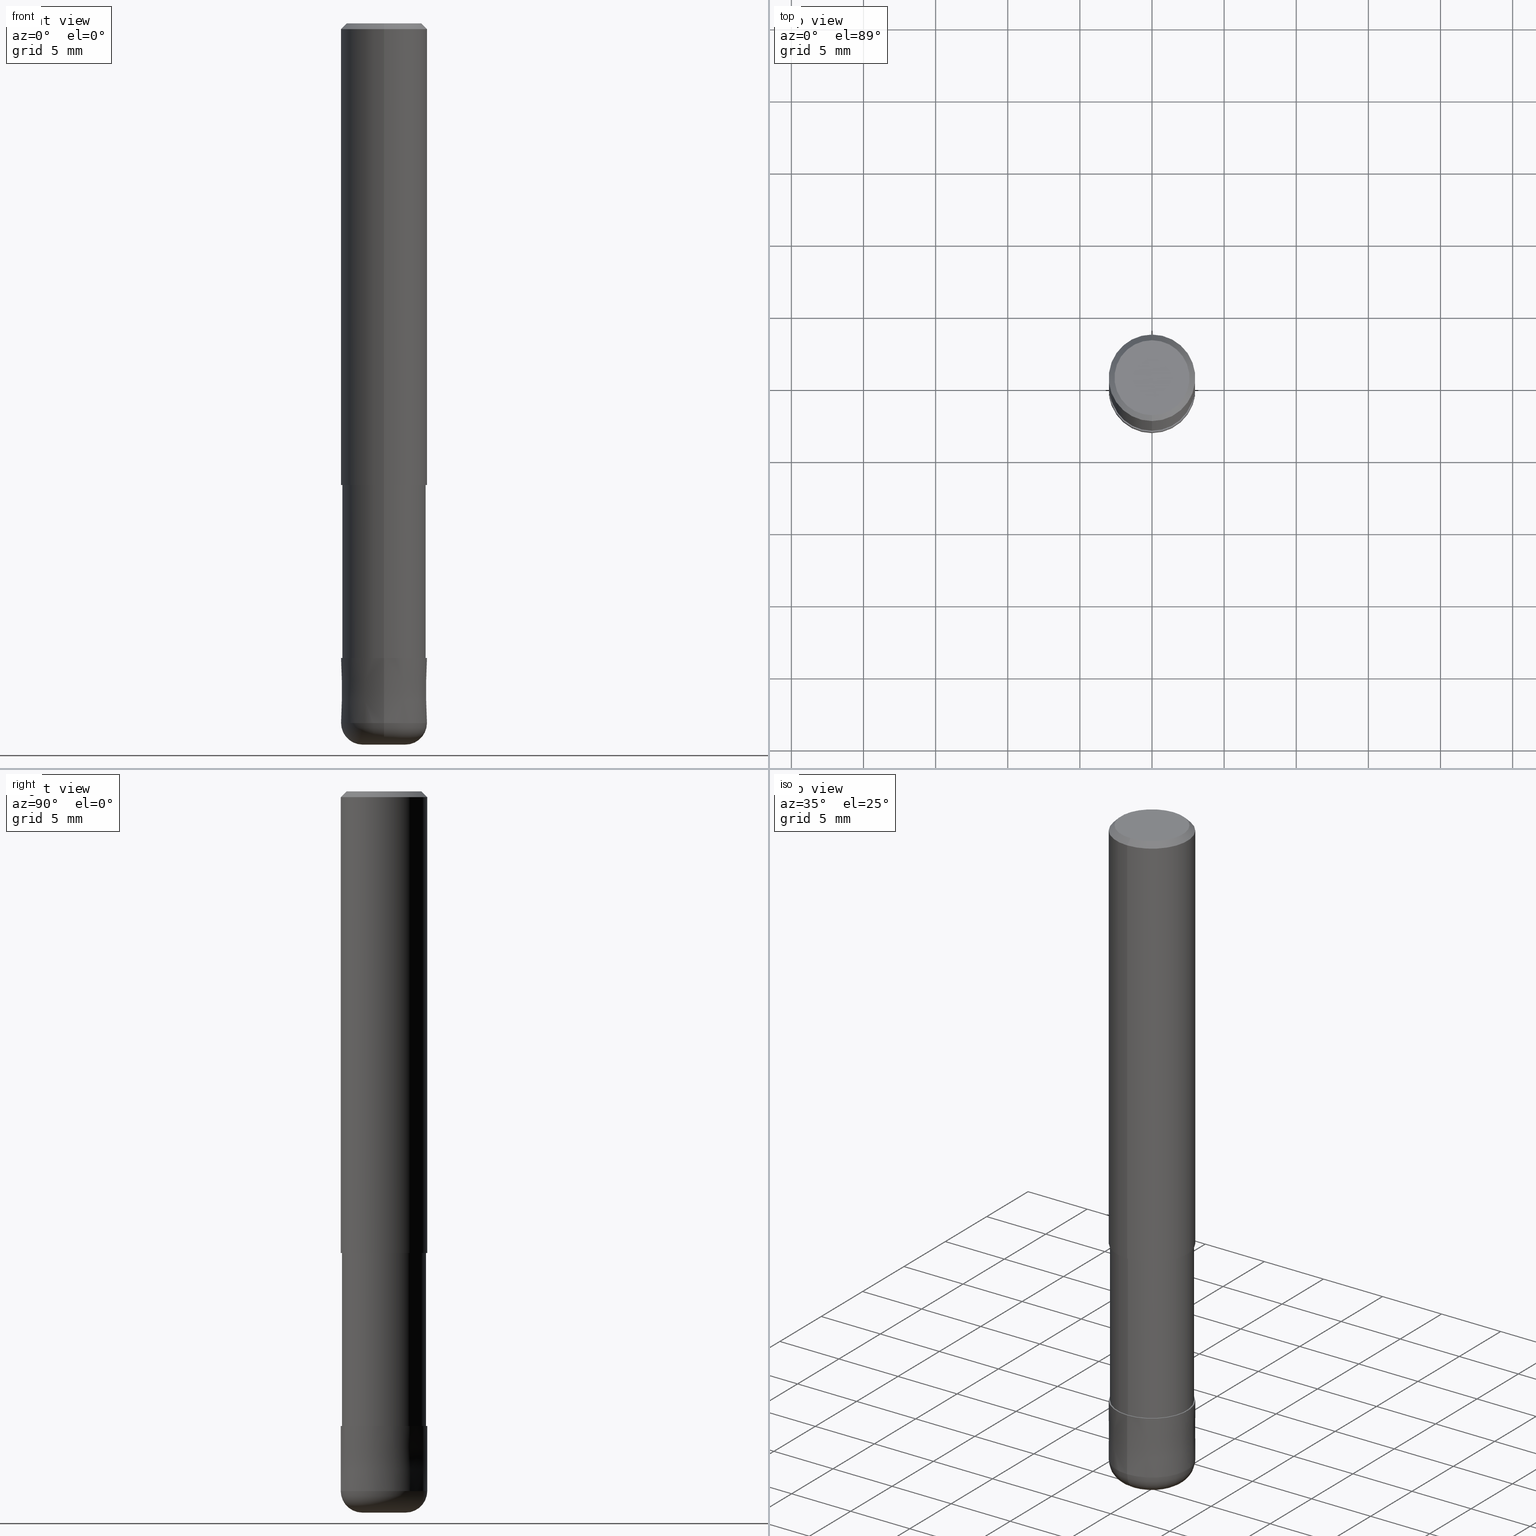
[diagram: canonical four-view strip — front | top / right | iso, engineering-drawing reading convention]
A machine part, canonical four-view strip (front | top / right | iso — engineering-drawing reading convention). The complete STEP part file that produces these views, byte-faithful:
ISO-10303-21;
HEADER;
FILE_DESCRIPTION(('no description'),'unknown implementation level');
FILE_NAME('HRRS4060-15-18S-Huellk.stp','  ',('CIMSOURCE GmbH'),('CADClick - KiM GmbH - www.kimweb.de'),'unknown preprocess','ACIS','unknown authorization');
FILE_SCHEMA(('automotive_design'));
ENDSEC;
DATA;
#1=MECHANICAL_DESIGN_GEOMETRIC_PRESENTATION_REPRESENTATION(' ',(#14,#15,#16,#17,#18,#19,#20,#21,#22,#23,#24,#25,#26,#27,#28,#29,#30,#31,#32,#33,#34,#35,#36,#37,#38,#39,#40,#41,#42,#43,#44,#45,#46,#47,#48,#49,#50,#51,#52,#53,#54,#55,#56,#57,#58,#59,#60,#61,#62,#63,#64,#65,#66,#67,#68,#69,#70,#71,#72),#10);
#2=PRODUCT_DEFINITION_CONTEXT('',#73,'design');
#3=APPLICATION_PROTOCOL_DEFINITION('INTERNATIONAL STANDARD','automotive_design',1994,#73);
#4=PRODUCT_CATEGORY_RELATIONSHIP('NONE','NONE',#74,#75);
#5=SHAPE_DEFINITION_REPRESENTATION(#76,#77);
#6=PRODUCT_DEFINITION_CONTEXT('',#78,'design');
#7=APPLICATION_PROTOCOL_DEFINITION('INTERNATIONAL STANDARD','automotive_design',1994,#78);
#8=PRODUCT_CATEGORY_RELATIONSHIP('NONE','NONE',#79,#80);
#9=SHAPE_DEFINITION_REPRESENTATION(#81,#82);
#10= (GEOMETRIC_REPRESENTATION_CONTEXT(3)GLOBAL_UNCERTAINTY_ASSIGNED_CONTEXT((#85))GLOBAL_UNIT_ASSIGNED_CONTEXT((#87,#88,#89))REPRESENTATION_CONTEXT('NONE','WORKSPACE'));
#14=STYLED_ITEM('',(#91),#92);
#15=STYLED_ITEM('',(#93),#94);
#16=STYLED_ITEM('',(#95),#96);
#17=STYLED_ITEM('',(#97),#98);
#18=STYLED_ITEM('',(#99),#100);
#19=STYLED_ITEM('',(#101),#102);
#20=STYLED_ITEM('',(#103),#104);
#21=STYLED_ITEM('',(#105),#106);
#22=STYLED_ITEM('',(#107),#108);
#23=STYLED_ITEM('',(#109),#110);
#24=STYLED_ITEM('',(#111),#112);
#25=STYLED_ITEM('',(#113),#114);
#26=STYLED_ITEM('',(#115),#116);
#27=STYLED_ITEM('',(#117),#118);
#28=STYLED_ITEM('',(#119),#120);
#29=STYLED_ITEM('',(#121),#122);
#30=STYLED_ITEM('',(#123),#124);
#31=STYLED_ITEM('',(#125),#126);
#32=STYLED_ITEM('',(#127),#128);
#33=STYLED_ITEM('',(#129),#130);
#34=STYLED_ITEM('',(#131),#132);
#35=STYLED_ITEM('',(#133),#134);
#36=STYLED_ITEM('',(#135),#136);
#37=STYLED_ITEM('',(#137),#138);
#38=STYLED_ITEM('',(#139),#140);
#39=STYLED_ITEM('',(#141),#142);
#40=STYLED_ITEM('',(#143),#144);
#41=STYLED_ITEM('',(#145),#146);
#42=STYLED_ITEM('',(#147),#148);
#43=STYLED_ITEM('',(#149),#150);
#44=STYLED_ITEM('',(#151),#152);
#45=STYLED_ITEM('',(#153),#154);
#46=STYLED_ITEM('',(#155),#156);
#47=STYLED_ITEM('',(#157),#158);
#48=STYLED_ITEM('',(#159),#160);
#49=STYLED_ITEM('',(#161),#162);
#50=STYLED_ITEM('',(#163),#164);
#51=STYLED_ITEM('',(#165),#166);
#52=STYLED_ITEM('',(#167),#168);
#53=STYLED_ITEM('',(#169),#170);
#54=STYLED_ITEM('',(#171),#172);
#55=STYLED_ITEM('',(#173),#174);
#56=STYLED_ITEM('',(#175),#176);
#57=STYLED_ITEM('',(#177),#178);
#58=STYLED_ITEM('',(#179),#180);
#59=STYLED_ITEM('',(#181),#182);
#60=STYLED_ITEM('',(#183),#184);
#61=STYLED_ITEM('',(#185),#186);
#62=STYLED_ITEM('',(#187),#188);
#63=STYLED_ITEM('',(#189),#190);
#64=STYLED_ITEM('',(#191),#192);
#65=STYLED_ITEM('',(#193),#194);
#66=STYLED_ITEM('',(#195),#196);
#67=STYLED_ITEM('',(#197),#198);
#68=STYLED_ITEM('',(#199),#200);
#69=STYLED_ITEM('',(#201),#202);
#70=STYLED_ITEM('',(#203),#204);
#71=STYLED_ITEM('',(#205),#206);
#72=STYLED_ITEM('',(#207),#208);
#73=APPLICATION_CONTEXT(' ');
#74=PRODUCT_CATEGORY('part','NONE');
#75=PRODUCT_RELATED_PRODUCT_CATEGORY('detail',' ',(#209));
#76=PRODUCT_DEFINITION_SHAPE('NONE','NONE',#210);
#77=ADVANCED_BREP_SHAPE_REPRESENTATION('1',(#106,#211),#10);
#78=APPLICATION_CONTEXT(' ');
#79=PRODUCT_CATEGORY('part','NONE');
#80=PRODUCT_RELATED_PRODUCT_CATEGORY('detail',' ',(#212));
#81=PRODUCT_DEFINITION_SHAPE('NONE','NONE',#213);
#82=ADVANCED_BREP_SHAPE_REPRESENTATION('2',(#132,#214),#10);
#85=UNCERTAINTY_MEASURE_WITH_UNIT(LENGTH_MEASURE(1.0E-006),#87,'','');
#87= (CONVERSION_BASED_UNIT('MILLIMETRE',#217)LENGTH_UNIT()NAMED_UNIT(#220));
#88= (NAMED_UNIT(#222)PLANE_ANGLE_UNIT()SI_UNIT($,.RADIAN.));
#89= (NAMED_UNIT(#222)SOLID_ANGLE_UNIT()SI_UNIT($,.STERADIAN.));
#91=PRESENTATION_STYLE_ASSIGNMENT((#228));
#92=ADVANCED_FACE('',(#229),#230,.T.);
#93=PRESENTATION_STYLE_ASSIGNMENT((#231));
#94=VERTEX_POINT('',#232);
#95=PRESENTATION_STYLE_ASSIGNMENT((#233));
#96=EDGE_CURVE('',#144,#134,#234,.T.);
#97=PRESENTATION_STYLE_ASSIGNMENT((#235));
#98=EDGE_CURVE('',#128,#188,#236,.T.);
#99=PRESENTATION_STYLE_ASSIGNMENT((#237));
#100=EDGE_CURVE('',#142,#94,#238,.T.);
#101=PRESENTATION_STYLE_ASSIGNMENT((#239));
#102=EDGE_CURVE('',#124,#206,#240,.T.);
#103=PRESENTATION_STYLE_ASSIGNMENT((#241));
#104=ADVANCED_FACE('',(#242),#243,.T.);
#105=PRESENTATION_STYLE_ASSIGNMENT((#244));
#106=MANIFOLD_SOLID_BREP('1',#245);
#107=PRESENTATION_STYLE_ASSIGNMENT((#246));
#108=EDGE_CURVE('',#128,#184,#247,.T.);
#109=PRESENTATION_STYLE_ASSIGNMENT((#248));
#110=EDGE_CURVE('',#142,#136,#249,.T.);
#111=PRESENTATION_STYLE_ASSIGNMENT((#250));
#112=EDGE_CURVE('',#156,#206,#251,.T.);
#113=PRESENTATION_STYLE_ASSIGNMENT((#252));
#114=ADVANCED_FACE('',(#253),#254,.T.);
#115=PRESENTATION_STYLE_ASSIGNMENT((#255));
#116=ADVANCED_FACE('',(#256),#257,.T.);
#117=PRESENTATION_STYLE_ASSIGNMENT((#258));
#118=ADVANCED_FACE('',(#259),#260,.T.);
#119=PRESENTATION_STYLE_ASSIGNMENT((#261));
#120=ADVANCED_FACE('',(#262),#263,.T.);
#121=PRESENTATION_STYLE_ASSIGNMENT((#264));
#122=ADVANCED_FACE('',(#265),#266,.T.);
#123=PRESENTATION_STYLE_ASSIGNMENT((#267));
#124=VERTEX_POINT('',#268);
#125=PRESENTATION_STYLE_ASSIGNMENT((#269));
#126=VERTEX_POINT('',#270);
#127=PRESENTATION_STYLE_ASSIGNMENT((#271));
#128=VERTEX_POINT('',#272);
#129=PRESENTATION_STYLE_ASSIGNMENT((#273));
#130=VERTEX_POINT('',#274);
#131=PRESENTATION_STYLE_ASSIGNMENT((#275));
#132=MANIFOLD_SOLID_BREP('2',#276);
#133=PRESENTATION_STYLE_ASSIGNMENT((#277));
#134=VERTEX_POINT('',#278);
#135=PRESENTATION_STYLE_ASSIGNMENT((#279));
#136=VERTEX_POINT('',#280);
#137=PRESENTATION_STYLE_ASSIGNMENT((#281));
#138=VERTEX_POINT('',#282);
#139=PRESENTATION_STYLE_ASSIGNMENT((#283));
#140=EDGE_CURVE('',#136,#142,#284,.T.);
#141=PRESENTATION_STYLE_ASSIGNMENT((#285));
#142=VERTEX_POINT('',#286);
#143=PRESENTATION_STYLE_ASSIGNMENT((#287));
#144=VERTEX_POINT('',#288);
#145=PRESENTATION_STYLE_ASSIGNMENT((#289));
#146=EDGE_CURVE('',#164,#130,#290,.T.);
#147=PRESENTATION_STYLE_ASSIGNMENT((#291));
#148=EDGE_CURVE('',#94,#176,#292,.T.);
#149=PRESENTATION_STYLE_ASSIGNMENT((#293));
#150=EDGE_CURVE('',#136,#134,#294,.T.);
#151=PRESENTATION_STYLE_ASSIGNMENT((#295));
#152=EDGE_CURVE('',#176,#94,#296,.T.);
#153=PRESENTATION_STYLE_ASSIGNMENT((#297));
#154=EDGE_CURVE('',#184,#128,#298,.T.);
#155=PRESENTATION_STYLE_ASSIGNMENT((#299));
#156=VERTEX_POINT('',#300);
#157=PRESENTATION_STYLE_ASSIGNMENT((#301));
#158=ADVANCED_FACE('',(#302),#303,.T.);
#159=PRESENTATION_STYLE_ASSIGNMENT((#304));
#160=EDGE_CURVE('',#138,#156,#305,.T.);
#161=PRESENTATION_STYLE_ASSIGNMENT((#306));
#162=ADVANCED_FACE('',(#307),#308,.T.);
#163=PRESENTATION_STYLE_ASSIGNMENT((#309));
#164=VERTEX_POINT('',#310);
#165=PRESENTATION_STYLE_ASSIGNMENT((#311));
#166=EDGE_CURVE('',#126,#188,#312,.T.);
#167=PRESENTATION_STYLE_ASSIGNMENT((#313));
#168=EDGE_CURVE('',#206,#124,#314,.T.);
#169=PRESENTATION_STYLE_ASSIGNMENT((#315));
#170=EDGE_CURVE('',#156,#138,#316,.T.);
#171=PRESENTATION_STYLE_ASSIGNMENT((#317));
#172=ADVANCED_FACE('',(#318,#319),#320,.T.);
#173=PRESENTATION_STYLE_ASSIGNMENT((#321));
#174=EDGE_CURVE('',#188,#126,#322,.T.);
#175=PRESENTATION_STYLE_ASSIGNMENT((#323));
#176=VERTEX_POINT('',#324);
#177=PRESENTATION_STYLE_ASSIGNMENT((#325));
#178=EDGE_CURVE('',#130,#164,#326,.T.);
#179=PRESENTATION_STYLE_ASSIGNMENT((#327));
#180=EDGE_CURVE('',#176,#136,#328,.T.);
#181=PRESENTATION_STYLE_ASSIGNMENT((#329));
#182=ADVANCED_FACE('',(#330),#331,.T.);
#183=PRESENTATION_STYLE_ASSIGNMENT((#332));
#184=VERTEX_POINT('',#333);
#185=PRESENTATION_STYLE_ASSIGNMENT((#334));
#186=ADVANCED_FACE('',(#335),#336,.T.);
#187=PRESENTATION_STYLE_ASSIGNMENT((#337));
#188=VERTEX_POINT('',#338);
#189=PRESENTATION_STYLE_ASSIGNMENT((#339));
#190=ADVANCED_FACE('',(#340),#341,.T.);
#191=PRESENTATION_STYLE_ASSIGNMENT((#342));
#192=ADVANCED_FACE('',(#343),#344,.T.);
#193=PRESENTATION_STYLE_ASSIGNMENT((#345));
#194=ADVANCED_FACE('',(#346),#347,.T.);
#195=PRESENTATION_STYLE_ASSIGNMENT((#348));
#196=EDGE_CURVE('',#144,#142,#349,.T.);
#197=PRESENTATION_STYLE_ASSIGNMENT((#350));
#198=EDGE_CURVE('',#124,#138,#351,.T.);
#199=PRESENTATION_STYLE_ASSIGNMENT((#352));
#200=EDGE_CURVE('',#134,#144,#353,.T.);
#201=PRESENTATION_STYLE_ASSIGNMENT((#354));
#202=EDGE_CURVE('',#124,#130,#355,.T.);
#203=PRESENTATION_STYLE_ASSIGNMENT((#356));
#204=EDGE_CURVE('',#164,#206,#357,.T.);
#205=PRESENTATION_STYLE_ASSIGNMENT((#358));
#206=VERTEX_POINT('',#359);
#207=PRESENTATION_STYLE_ASSIGNMENT((#360));
#208=EDGE_CURVE('',#126,#184,#361,.T.);
#209=PRODUCT('1','1','PART-1-DESC',(#362));
#210=PRODUCT_DEFINITION('NONE','NONE',#363,#2);
#211=AXIS2_PLACEMENT_3D('',#364,#365,#366);
#212=PRODUCT('2','2','PART-2-DESC',(#367));
#213=PRODUCT_DEFINITION('NONE','NONE',#368,#6);
#214=AXIS2_PLACEMENT_3D('',#369,#370,#371);
#217=LENGTH_MEASURE_WITH_UNIT(LENGTH_MEASURE(1.0),#372);
#220=DIMENSIONAL_EXPONENTS(1.0,0.0,0.0,0.0,0.0,0.0,0.0);
#222=DIMENSIONAL_EXPONENTS(0.0,0.0,0.0,0.0,0.0,0.0,0.0);
#228=SURFACE_STYLE_USAGE(.BOTH.,#373);
#229=FACE_OUTER_BOUND('',#374,.T.);
#230=CONICAL_SURFACE('',#375,2.99995,2.22222222186111E-005);
#231=POINT_STYLE(' ',#376,POSITIVE_LENGTH_MEASURE(1.0E-006),#377);
#232=CARTESIAN_POINT('',(3.18397651993818E-016,-2.6,0.0));
#233=CURVE_STYLE('',#378,POSITIVE_LENGTH_MEASURE(1.0E-006),#379);
#234=CIRCLE('',#380,3.0);
#235=CURVE_STYLE('',#381,POSITIVE_LENGTH_MEASURE(1.0E-006),#382);
#236=LINE('',#383,#384);
#237=CURVE_STYLE('',#385,POSITIVE_LENGTH_MEASURE(1.0E-006),#386);
#238=LINE('',#387,#388);
#239=CURVE_STYLE('',#389,POSITIVE_LENGTH_MEASURE(1.0E-006),#390);
#240=CIRCLE('',#391,3.0);
#241=SURFACE_STYLE_USAGE(.BOTH.,#392);
#242=FACE_OUTER_BOUND('',#393,.T.);
#243=CONICAL_SURFACE('',#394,2.8,0.78539816339745);
#244=SURFACE_STYLE_USAGE(.BOTH.,#395);
#245=CLOSED_SHELL('',(#192,#194,#104,#172,#120,#158,#116,#122,#190));
#246=CURVE_STYLE('',#396,POSITIVE_LENGTH_MEASURE(1.0E-006),#397);
#247=CIRCLE('',#398,2.90995);
#248=CURVE_STYLE('',#399,POSITIVE_LENGTH_MEASURE(1.0E-006),#400);
#249=CIRCLE('',#401,3.0);
#250=CURVE_STYLE('',#402,POSITIVE_LENGTH_MEASURE(1.0E-006),#403);
#251=LINE('',#404,#405);
#252=SURFACE_STYLE_USAGE(.BOTH.,#406);
#253=FACE_OUTER_BOUND('',#407,.T.);
#254=CONICAL_SURFACE('',#408,2.99995,2.22222222186111E-005);
#255=SURFACE_STYLE_USAGE(.BOTH.,#409);
#256=FACE_OUTER_BOUND('',#410,.T.);
#257=CYLINDRICAL_SURFACE('',#411,3.0);
#258=SURFACE_STYLE_USAGE(.BOTH.,#412);
#259=FACE_OUTER_BOUND('',#413,.T.);
#260=PLANE('',#414);
#261=SURFACE_STYLE_USAGE(.BOTH.,#415);
#262=FACE_OUTER_BOUND('',#416,.T.);
#263=PLANE('',#417);
#264=SURFACE_STYLE_USAGE(.BOTH.,#418);
#265=FACE_OUTER_BOUND('',#419,.T.);
#266=CYLINDRICAL_SURFACE('',#420,2.90995);
#267=POINT_STYLE(' ',#421,POSITIVE_LENGTH_MEASURE(1.0E-006),#422);
#268=CARTESIAN_POINT('',(3.67381906146713E-016,-3.0,-48.5));
#269=POINT_STYLE(' ',#423,POSITIVE_LENGTH_MEASURE(1.0E-006),#424);
#270=CARTESIAN_POINT('',(3.56354325930543E-016,-2.90995,-44.0));
#271=POINT_STYLE(' ',#425,POSITIVE_LENGTH_MEASURE(1.0E-006),#426);
#272=CARTESIAN_POINT('',(0.0,2.90995,-32.0));
#273=POINT_STYLE(' ',#427,POSITIVE_LENGTH_MEASURE(1.0E-006),#428);
#274=CARTESIAN_POINT('',(1.83690953073357E-016,-1.5,-50.0));
#275=SURFACE_STYLE_USAGE(.BOTH.,#429);
#276=CLOSED_SHELL('',(#162,#114,#118,#92,#182,#186));
#277=POINT_STYLE(' ',#430,POSITIVE_LENGTH_MEASURE(1.0E-006),#431);
#278=CARTESIAN_POINT('',(0.0,3.0,-32.0));
#279=POINT_STYLE(' ',#432,POSITIVE_LENGTH_MEASURE(1.0E-006),#433);
#280=CARTESIAN_POINT('',(0.0,3.0,-0.399999999999999));
#281=POINT_STYLE(' ',#434,POSITIVE_LENGTH_MEASURE(1.0E-006),#435);
#282=CARTESIAN_POINT('',(3.67369660083175E-016,-2.9999,-44.0));
#283=CURVE_STYLE('',#436,POSITIVE_LENGTH_MEASURE(1.0E-006),#437);
#284=CIRCLE('',#438,3.0);
#285=POINT_STYLE(' ',#439,POSITIVE_LENGTH_MEASURE(1.0E-006),#440);
#286=CARTESIAN_POINT('',(3.67381906146713E-016,-3.0,-0.399999999999999));
#287=POINT_STYLE(' ',#441,POSITIVE_LENGTH_MEASURE(1.0E-006),#442);
#288=CARTESIAN_POINT('',(3.67381906146713E-016,-3.0,-32.0));
#289=CURVE_STYLE('',#443,POSITIVE_LENGTH_MEASURE(1.0E-006),#444);
#290=CIRCLE('',#445,1.5);
#291=CURVE_STYLE('',#446,POSITIVE_LENGTH_MEASURE(1.0E-006),#447);
#292=CIRCLE('',#448,2.6);
#293=CURVE_STYLE('',#449,POSITIVE_LENGTH_MEASURE(1.0E-006),#450);
#294=LINE('',#451,#452);
#295=CURVE_STYLE('',#453,POSITIVE_LENGTH_MEASURE(1.0E-006),#454);
#296=CIRCLE('',#455,2.6);
#297=CURVE_STYLE('',#456,POSITIVE_LENGTH_MEASURE(1.0E-006),#457);
#298=CIRCLE('',#458,2.90995);
#299=POINT_STYLE(' ',#459,POSITIVE_LENGTH_MEASURE(1.0E-006),#460);
#300=CARTESIAN_POINT('',(0.0,2.9999,-44.0));
#301=SURFACE_STYLE_USAGE(.BOTH.,#461);
#302=FACE_OUTER_BOUND('',#462,.T.);
#303=CONICAL_SURFACE('',#463,2.8,0.78539816339745);
#304=CURVE_STYLE('',#464,POSITIVE_LENGTH_MEASURE(1.0E-006),#465);
#305=CIRCLE('',#466,2.9999);
#306=SURFACE_STYLE_USAGE(.BOTH.,#467);
#307=FACE_OUTER_BOUND('',#468,.T.);
#308=TOROIDAL_SURFACE('',#469,1.5,1.5);
#309=POINT_STYLE(' ',#470,POSITIVE_LENGTH_MEASURE(1.0E-006),#471);
#310=CARTESIAN_POINT('',(0.0,1.5,-50.0));
#311=CURVE_STYLE('',#472,POSITIVE_LENGTH_MEASURE(1.0E-006),#473);
#312=CIRCLE('',#474,2.90995);
#313=CURVE_STYLE('',#475,POSITIVE_LENGTH_MEASURE(1.0E-006),#476);
#314=CIRCLE('',#477,3.0);
#315=CURVE_STYLE('',#478,POSITIVE_LENGTH_MEASURE(1.0E-006),#479);
#316=CIRCLE('',#480,2.9999);
#317=SURFACE_STYLE_USAGE(.BOTH.,#481);
#318=FACE_OUTER_BOUND('',#482,.T.);
#319=FACE_BOUND('',#483,.T.);
#320=PLANE('',#484);
#321=CURVE_STYLE('',#485,POSITIVE_LENGTH_MEASURE(1.0E-006),#486);
#322=CIRCLE('',#487,2.90995);
#323=POINT_STYLE(' ',#488,POSITIVE_LENGTH_MEASURE(1.0E-006),#489);
#324=CARTESIAN_POINT('',(0.0,2.6,0.0));
#325=CURVE_STYLE('',#490,POSITIVE_LENGTH_MEASURE(1.0E-006),#491);
#326=CIRCLE('',#492,1.5);
#327=CURVE_STYLE('',#493,POSITIVE_LENGTH_MEASURE(1.0E-006),#494);
#328=LINE('',#495,#496);
#329=SURFACE_STYLE_USAGE(.BOTH.,#497);
#330=FACE_OUTER_BOUND('',#498,.T.);
#331=TOROIDAL_SURFACE('',#499,1.5,1.5);
#332=POINT_STYLE(' ',#500,POSITIVE_LENGTH_MEASURE(1.0E-006),#501);
#333=CARTESIAN_POINT('',(3.56354325930543E-016,-2.90995,-32.0));
#334=SURFACE_STYLE_USAGE(.BOTH.,#502);
#335=FACE_OUTER_BOUND('',#503,.T.);
#336=PLANE('',#504);
#337=POINT_STYLE(' ',#505,POSITIVE_LENGTH_MEASURE(1.0E-006),#506);
#338=CARTESIAN_POINT('',(0.0,2.90995,-44.0));
#339=SURFACE_STYLE_USAGE(.BOTH.,#507);
#340=FACE_OUTER_BOUND('',#508,.T.);
#341=PLANE('',#509);
#342=SURFACE_STYLE_USAGE(.BOTH.,#510);
#343=FACE_OUTER_BOUND('',#511,.T.);
#344=CYLINDRICAL_SURFACE('',#512,2.90995);
#345=SURFACE_STYLE_USAGE(.BOTH.,#513);
#346=FACE_OUTER_BOUND('',#514,.T.);
#347=CYLINDRICAL_SURFACE('',#515,3.0);
#348=CURVE_STYLE('',#516,POSITIVE_LENGTH_MEASURE(1.0E-006),#517);
#349=LINE('',#518,#519);
#350=CURVE_STYLE('',#520,POSITIVE_LENGTH_MEASURE(1.0E-006),#521);
#351=LINE('',#522,#523);
#352=CURVE_STYLE('',#524,POSITIVE_LENGTH_MEASURE(1.0E-006),#525);
#353=CIRCLE('',#526,3.0);
#354=CURVE_STYLE('',#527,POSITIVE_LENGTH_MEASURE(1.0E-006),#528);
#355=CIRCLE('',#529,1.5);
#356=CURVE_STYLE('',#530,POSITIVE_LENGTH_MEASURE(1.0E-006),#531);
#357=CIRCLE('',#532,1.5);
#358=POINT_STYLE(' ',#533,POSITIVE_LENGTH_MEASURE(1.0E-006),#534);
#359=CARTESIAN_POINT('',(0.0,3.0,-48.5));
#360=CURVE_STYLE('',#535,POSITIVE_LENGTH_MEASURE(1.0E-006),#536);
#361=LINE('',#537,#538);
#362=PRODUCT_CONTEXT('',#73,'mechanical');
#363=PRODUCT_DEFINITION_FORMATION_WITH_SPECIFIED_SOURCE(' ','NONE',#209,.NOT_KNOWN.);
#364=CARTESIAN_POINT('',(0.0,0.0,0.0));
#365=DIRECTION('',(0.0,0.0,1.0));
#366=DIRECTION('',(1.0,0.0,0.0));
#367=PRODUCT_CONTEXT('',#78,'mechanical');
#368=PRODUCT_DEFINITION_FORMATION_WITH_SPECIFIED_SOURCE(' ','NONE',#212,.NOT_KNOWN.);
#369=CARTESIAN_POINT('',(0.0,0.0,0.0));
#370=DIRECTION('',(0.0,0.0,1.0));
#371=DIRECTION('',(1.0,0.0,0.0));
#372= (NAMED_UNIT(#220)LENGTH_UNIT()SI_UNIT(.MILLI.,.METRE.));
#373=SURFACE_SIDE_STYLE('',(#540));
#374=EDGE_LOOP('',(#541,#542,#543,#544));
#375=AXIS2_PLACEMENT_3D('',#545,#546,#547);
#376=PRE_DEFINED_MARKER('');
#377=COLOUR_RGB('',0.498039215803146,0.498039215803146,0.498039215803146);
#378=DRAUGHTING_PRE_DEFINED_CURVE_FONT('continuous');
#379=COLOUR_RGB('',0.498039215803146,0.498039215803146,0.498039215803146);
#380=AXIS2_PLACEMENT_3D('',#548,#549,#550);
#381=DRAUGHTING_PRE_DEFINED_CURVE_FONT('continuous');
#382=COLOUR_RGB('',0.498039215803146,0.498039215803146,0.498039215803146);
#383=CARTESIAN_POINT('',(-3.56354325930543E-016,2.90995,-38.0));
#384=VECTOR('',#551,1.0);
#385=DRAUGHTING_PRE_DEFINED_CURVE_FONT('continuous');
#386=COLOUR_RGB('',0.498039215803146,0.498039215803146,0.498039215803146);
#387=CARTESIAN_POINT('',(3.42889779070266E-016,-2.8,-0.199999999999999));
#388=VECTOR('',#552,1.0);
#389=DRAUGHTING_PRE_DEFINED_CURVE_FONT('continuous');
#390=COLOUR_RGB('',0.800000011920929,0.800000011920929,0.800000011920929);
#391=AXIS2_PLACEMENT_3D('',#553,#554,#555);
#392=SURFACE_SIDE_STYLE('',(#556));
#393=EDGE_LOOP('',(#557,#558,#559,#560));
#394=AXIS2_PLACEMENT_3D('',#561,#562,#563);
#395=SURFACE_SIDE_STYLE('',(#564));
#396=DRAUGHTING_PRE_DEFINED_CURVE_FONT('continuous');
#397=COLOUR_RGB('',0.498039215803146,0.498039215803146,0.498039215803146);
#398=AXIS2_PLACEMENT_3D('',#565,#566,#567);
#399=DRAUGHTING_PRE_DEFINED_CURVE_FONT('continuous');
#400=COLOUR_RGB('',0.498039215803146,0.498039215803146,0.498039215803146);
#401=AXIS2_PLACEMENT_3D('',#568,#569,#570);
#402=DRAUGHTING_PRE_DEFINED_CURVE_FONT('continuous');
#403=COLOUR_RGB('',0.800000011920929,0.800000011920929,0.800000011920929);
#404=CARTESIAN_POINT('',(-3.67375783114944E-016,2.99995,-46.25));
#405=VECTOR('',#571,1.0);
#406=SURFACE_SIDE_STYLE('',(#572));
#407=EDGE_LOOP('',(#573,#574,#575,#576));
#408=AXIS2_PLACEMENT_3D('',#577,#578,#579);
#409=SURFACE_SIDE_STYLE('',(#580));
#410=EDGE_LOOP('',(#581,#582,#583,#584));
#411=AXIS2_PLACEMENT_3D('',#585,#586,#587);
#412=SURFACE_SIDE_STYLE('',(#588));
#413=EDGE_LOOP('',(#589,#590));
#414=AXIS2_PLACEMENT_3D('',#591,#592,#593);
#415=SURFACE_SIDE_STYLE('',(#594));
#416=EDGE_LOOP('',(#595,#596));
#417=AXIS2_PLACEMENT_3D('',#597,#598,#599);
#418=SURFACE_SIDE_STYLE('',(#600));
#419=EDGE_LOOP('',(#601,#602,#603,#604));
#420=AXIS2_PLACEMENT_3D('',#605,#606,#607);
#421=PRE_DEFINED_MARKER('');
#422=COLOUR_RGB('',0.800000011920929,0.800000011920929,0.800000011920929);
#423=PRE_DEFINED_MARKER('');
#424=COLOUR_RGB('',0.498039215803146,0.498039215803146,0.498039215803146);
#425=PRE_DEFINED_MARKER('');
#426=COLOUR_RGB('',0.498039215803146,0.498039215803146,0.498039215803146);
#427=PRE_DEFINED_MARKER('');
#428=COLOUR_RGB('',0.800000011920929,0.800000011920929,0.800000011920929);
#429=SURFACE_SIDE_STYLE('',(#608));
#430=PRE_DEFINED_MARKER('');
#431=COLOUR_RGB('',0.498039215803146,0.498039215803146,0.498039215803146);
#432=PRE_DEFINED_MARKER('');
#433=COLOUR_RGB('',0.498039215803146,0.498039215803146,0.498039215803146);
#434=PRE_DEFINED_MARKER('');
#435=COLOUR_RGB('',0.800000011920929,0.800000011920929,0.800000011920929);
#436=DRAUGHTING_PRE_DEFINED_CURVE_FONT('continuous');
#437=COLOUR_RGB('',0.498039215803146,0.498039215803146,0.498039215803146);
#438=AXIS2_PLACEMENT_3D('',#609,#610,#611);
#439=PRE_DEFINED_MARKER('');
#440=COLOUR_RGB('',0.498039215803146,0.498039215803146,0.498039215803146);
#441=PRE_DEFINED_MARKER('');
#442=COLOUR_RGB('',0.498039215803146,0.498039215803146,0.498039215803146);
#443=DRAUGHTING_PRE_DEFINED_CURVE_FONT('continuous');
#444=COLOUR_RGB('',0.800000011920929,0.800000011920929,0.800000011920929);
#445=AXIS2_PLACEMENT_3D('',#612,#613,#614);
#446=DRAUGHTING_PRE_DEFINED_CURVE_FONT('continuous');
#447=COLOUR_RGB('',0.498039215803146,0.498039215803146,0.498039215803146);
#448=AXIS2_PLACEMENT_3D('',#615,#616,#617);
#449=DRAUGHTING_PRE_DEFINED_CURVE_FONT('continuous');
#450=COLOUR_RGB('',0.498039215803146,0.498039215803146,0.498039215803146);
#451=CARTESIAN_POINT('',(-3.67381906146713E-016,3.0,-16.2));
#452=VECTOR('',#618,1.0);
#453=DRAUGHTING_PRE_DEFINED_CURVE_FONT('continuous');
#454=COLOUR_RGB('',0.498039215803146,0.498039215803146,0.498039215803146);
#455=AXIS2_PLACEMENT_3D('',#619,#620,#621);
#456=DRAUGHTING_PRE_DEFINED_CURVE_FONT('continuous');
#457=COLOUR_RGB('',0.498039215803146,0.498039215803146,0.498039215803146);
#458=AXIS2_PLACEMENT_3D('',#622,#623,#624);
#459=PRE_DEFINED_MARKER('');
#460=COLOUR_RGB('',0.800000011920929,0.800000011920929,0.800000011920929);
#461=SURFACE_SIDE_STYLE('',(#625));
#462=EDGE_LOOP('',(#626,#627,#628,#629));
#463=AXIS2_PLACEMENT_3D('',#630,#631,#632);
#464=DRAUGHTING_PRE_DEFINED_CURVE_FONT('continuous');
#465=COLOUR_RGB('',0.800000011920929,0.800000011920929,0.800000011920929);
#466=AXIS2_PLACEMENT_3D('',#633,#634,#635);
#467=SURFACE_SIDE_STYLE('',(#636));
#468=EDGE_LOOP('',(#637,#638,#639,#640));
#469=AXIS2_PLACEMENT_3D('',#641,#642,#643);
#470=PRE_DEFINED_MARKER('');
#471=COLOUR_RGB('',0.800000011920929,0.800000011920929,0.800000011920929);
#472=DRAUGHTING_PRE_DEFINED_CURVE_FONT('continuous');
#473=COLOUR_RGB('',0.498039215803146,0.498039215803146,0.498039215803146);
#474=AXIS2_PLACEMENT_3D('',#644,#645,#646);
#475=DRAUGHTING_PRE_DEFINED_CURVE_FONT('continuous');
#476=COLOUR_RGB('',0.800000011920929,0.800000011920929,0.800000011920929);
#477=AXIS2_PLACEMENT_3D('',#647,#648,#649);
#478=DRAUGHTING_PRE_DEFINED_CURVE_FONT('continuous');
#479=COLOUR_RGB('',0.800000011920929,0.800000011920929,0.800000011920929);
#480=AXIS2_PLACEMENT_3D('',#650,#651,#652);
#481=SURFACE_SIDE_STYLE('',(#653));
#482=EDGE_LOOP('',(#654,#655));
#483=EDGE_LOOP('',(#656,#657));
#484=AXIS2_PLACEMENT_3D('',#658,#659,#660);
#485=DRAUGHTING_PRE_DEFINED_CURVE_FONT('continuous');
#486=COLOUR_RGB('',0.498039215803146,0.498039215803146,0.498039215803146);
#487=AXIS2_PLACEMENT_3D('',#661,#662,#663);
#488=PRE_DEFINED_MARKER('');
#489=COLOUR_RGB('',0.498039215803146,0.498039215803146,0.498039215803146);
#490=DRAUGHTING_PRE_DEFINED_CURVE_FONT('continuous');
#491=COLOUR_RGB('',0.800000011920929,0.800000011920929,0.800000011920929);
#492=AXIS2_PLACEMENT_3D('',#664,#665,#666);
#493=DRAUGHTING_PRE_DEFINED_CURVE_FONT('continuous');
#494=COLOUR_RGB('',0.498039215803146,0.498039215803146,0.498039215803146);
#495=CARTESIAN_POINT('',(-3.42889779070266E-016,2.8,-0.199999999999999));
#496=VECTOR('',#667,1.0);
#497=SURFACE_SIDE_STYLE('',(#668));
#498=EDGE_LOOP('',(#669,#670,#671,#672));
#499=AXIS2_PLACEMENT_3D('',#673,#674,#675);
#500=PRE_DEFINED_MARKER('');
#501=COLOUR_RGB('',0.498039215803146,0.498039215803146,0.498039215803146);
#502=SURFACE_SIDE_STYLE('',(#676));
#503=EDGE_LOOP('',(#677,#678));
#504=AXIS2_PLACEMENT_3D('',#679,#680,#681);
#505=PRE_DEFINED_MARKER('');
#506=COLOUR_RGB('',0.498039215803146,0.498039215803146,0.498039215803146);
#507=SURFACE_SIDE_STYLE('',(#682));
#508=EDGE_LOOP('',(#683,#684));
#509=AXIS2_PLACEMENT_3D('',#685,#686,#687);
#510=SURFACE_SIDE_STYLE('',(#688));
#511=EDGE_LOOP('',(#689,#690,#691,#692));
#512=AXIS2_PLACEMENT_3D('',#693,#694,#695);
#513=SURFACE_SIDE_STYLE('',(#696));
#514=EDGE_LOOP('',(#697,#698,#699,#700));
#515=AXIS2_PLACEMENT_3D('',#701,#702,#703);
#516=DRAUGHTING_PRE_DEFINED_CURVE_FONT('continuous');
#517=COLOUR_RGB('',0.498039215803146,0.498039215803146,0.498039215803146);
#518=CARTESIAN_POINT('',(3.67381906146713E-016,-3.0,-16.2));
#519=VECTOR('',#704,1.0);
#520=DRAUGHTING_PRE_DEFINED_CURVE_FONT('continuous');
#521=COLOUR_RGB('',0.800000011920929,0.800000011920929,0.800000011920929);
#522=CARTESIAN_POINT('',(3.67375783114944E-016,-2.99995,-46.25));
#523=VECTOR('',#705,1.0);
#524=DRAUGHTING_PRE_DEFINED_CURVE_FONT('continuous');
#525=COLOUR_RGB('',0.498039215803146,0.498039215803146,0.498039215803146);
#526=AXIS2_PLACEMENT_3D('',#706,#707,#708);
#527=DRAUGHTING_PRE_DEFINED_CURVE_FONT('continuous');
#528=COLOUR_RGB('',0.800000011920929,0.800000011920929,0.800000011920929);
#529=AXIS2_PLACEMENT_3D('',#709,#710,#711);
#530=DRAUGHTING_PRE_DEFINED_CURVE_FONT('continuous');
#531=COLOUR_RGB('',0.800000011920929,0.800000011920929,0.800000011920929);
#532=AXIS2_PLACEMENT_3D('',#712,#713,#714);
#533=PRE_DEFINED_MARKER('');
#534=COLOUR_RGB('',0.800000011920929,0.800000011920929,0.800000011920929);
#535=DRAUGHTING_PRE_DEFINED_CURVE_FONT('continuous');
#536=COLOUR_RGB('',0.498039215803146,0.498039215803146,0.498039215803146);
#537=CARTESIAN_POINT('',(3.56354325930543E-016,-2.90995,-38.0));
#538=VECTOR('',#715,1.0);
#540=SURFACE_STYLE_FILL_AREA(#716);
#541=ORIENTED_EDGE('',*,*,#112,.T.);
#542=ORIENTED_EDGE('',*,*,#102,.F.);
#543=ORIENTED_EDGE('',*,*,#198,.T.);
#544=ORIENTED_EDGE('',*,*,#160,.T.);
#545=CARTESIAN_POINT('',(0.0,0.0,-46.25));
#546=DIRECTION('',(0.0,-0.0,-1.0));
#547=DIRECTION('',(0.0,1.0,0.0));
#548=CARTESIAN_POINT('',(0.0,0.0,-32.0));
#549=DIRECTION('',(0.0,0.0,-1.0));
#550=DIRECTION('',(0.0,1.0,0.0));
#551=DIRECTION('',(0.0,0.0,-1.0));
#552=DIRECTION('',(-8.65927457071937E-017,0.707106781186549,0.707106781186546));
#553=CARTESIAN_POINT('',(0.0,0.0,-48.5));
#554=DIRECTION('',(0.0,0.0,-1.0));
#555=DIRECTION('',(0.0,1.0,0.0));
#556=SURFACE_STYLE_FILL_AREA(#717);
#557=ORIENTED_EDGE('',*,*,#180,.F.);
#558=ORIENTED_EDGE('',*,*,#152,.T.);
#559=ORIENTED_EDGE('',*,*,#100,.F.);
#560=ORIENTED_EDGE('',*,*,#140,.F.);
#561=CARTESIAN_POINT('',(0.0,0.0,-0.199999999999999));
#562=DIRECTION('',(0.0,-0.0,-1.0));
#563=DIRECTION('',(0.0,1.0,0.0));
#564=SURFACE_STYLE_FILL_AREA(#718);
#565=CARTESIAN_POINT('',(0.0,0.0,-32.0));
#566=DIRECTION('',(0.0,0.0,-1.0));
#567=DIRECTION('',(0.0,1.0,0.0));
#568=CARTESIAN_POINT('',(0.0,0.0,-0.399999999999999));
#569=DIRECTION('',(0.0,0.0,-1.0));
#570=DIRECTION('',(0.0,1.0,0.0));
#571=DIRECTION('',(-2.72134745227242E-021,2.22222222167822E-005,-0.999999999753086));
#572=SURFACE_STYLE_FILL_AREA(#719);
#573=ORIENTED_EDGE('',*,*,#112,.F.);
#574=ORIENTED_EDGE('',*,*,#170,.T.);
#575=ORIENTED_EDGE('',*,*,#198,.F.);
#576=ORIENTED_EDGE('',*,*,#168,.F.);
#577=CARTESIAN_POINT('',(0.0,0.0,-46.25));
#578=DIRECTION('',(0.0,-0.0,-1.0));
#579=DIRECTION('',(0.0,1.0,0.0));
#580=SURFACE_STYLE_FILL_AREA(#720);
#581=ORIENTED_EDGE('',*,*,#150,.T.);
#582=ORIENTED_EDGE('',*,*,#96,.F.);
#583=ORIENTED_EDGE('',*,*,#196,.T.);
#584=ORIENTED_EDGE('',*,*,#110,.T.);
#585=CARTESIAN_POINT('',(0.0,0.0,-16.2));
#586=DIRECTION('',(-0.0,-0.0,1.0));
#587=DIRECTION('',(0.0,1.0,0.0));
#588=SURFACE_STYLE_FILL_AREA(#721);
#589=ORIENTED_EDGE('',*,*,#170,.F.);
#590=ORIENTED_EDGE('',*,*,#160,.F.);
#591=CARTESIAN_POINT('',(0.0,1.49995,-44.0));
#592=DIRECTION('',(-0.0,0.0,1.0));
#593=DIRECTION('',(0.0,-1.0,0.0));
#594=SURFACE_STYLE_FILL_AREA(#722);
#595=ORIENTED_EDGE('',*,*,#152,.F.);
#596=ORIENTED_EDGE('',*,*,#148,.F.);
#597=CARTESIAN_POINT('',(0.0,1.3,0.0));
#598=DIRECTION('',(-0.0,0.0,1.0));
#599=DIRECTION('',(0.0,-1.0,0.0));
#600=SURFACE_STYLE_FILL_AREA(#723);
#601=ORIENTED_EDGE('',*,*,#98,.T.);
#602=ORIENTED_EDGE('',*,*,#166,.F.);
#603=ORIENTED_EDGE('',*,*,#208,.T.);
#604=ORIENTED_EDGE('',*,*,#154,.T.);
#605=CARTESIAN_POINT('',(0.0,0.0,-38.0));
#606=DIRECTION('',(-0.0,-0.0,1.0));
#607=DIRECTION('',(0.0,1.0,0.0));
#608=SURFACE_STYLE_FILL_AREA(#724);
#609=CARTESIAN_POINT('',(0.0,0.0,-0.399999999999999));
#610=DIRECTION('',(0.0,0.0,-1.0));
#611=DIRECTION('',(0.0,1.0,0.0));
#612=CARTESIAN_POINT('',(0.0,0.0,-50.0));
#613=DIRECTION('',(0.0,0.0,-1.0));
#614=DIRECTION('',(0.0,1.0,0.0));
#615=CARTESIAN_POINT('',(0.0,0.0,0.0));
#616=DIRECTION('',(0.0,0.0,-1.0));
#617=DIRECTION('',(0.0,1.0,0.0));
#618=DIRECTION('',(0.0,0.0,-1.0));
#619=CARTESIAN_POINT('',(0.0,0.0,0.0));
#620=DIRECTION('',(0.0,0.0,-1.0));
#621=DIRECTION('',(0.0,1.0,0.0));
#622=CARTESIAN_POINT('',(0.0,0.0,-32.0));
#623=DIRECTION('',(0.0,0.0,-1.0));
#624=DIRECTION('',(0.0,1.0,0.0));
#625=SURFACE_STYLE_FILL_AREA(#725);
#626=ORIENTED_EDGE('',*,*,#180,.T.);
#627=ORIENTED_EDGE('',*,*,#110,.F.);
#628=ORIENTED_EDGE('',*,*,#100,.T.);
#629=ORIENTED_EDGE('',*,*,#148,.T.);
#630=CARTESIAN_POINT('',(0.0,0.0,-0.199999999999999));
#631=DIRECTION('',(0.0,-0.0,-1.0));
#632=DIRECTION('',(0.0,1.0,0.0));
#633=CARTESIAN_POINT('',(0.0,0.0,-44.0));
#634=DIRECTION('',(0.0,0.0,-1.0));
#635=DIRECTION('',(0.0,1.0,0.0));
#636=SURFACE_STYLE_FILL_AREA(#726);
#637=ORIENTED_EDGE('',*,*,#202,.F.);
#638=ORIENTED_EDGE('',*,*,#102,.T.);
#639=ORIENTED_EDGE('',*,*,#204,.F.);
#640=ORIENTED_EDGE('',*,*,#178,.F.);
#641=CARTESIAN_POINT('',(0.0,0.0,-48.5));
#642=DIRECTION('',(0.0,0.0,-1.0));
#643=DIRECTION('',(0.0,-1.0,0.0));
#644=CARTESIAN_POINT('',(0.0,0.0,-44.0));
#645=DIRECTION('',(0.0,0.0,-1.0));
#646=DIRECTION('',(0.0,1.0,0.0));
#647=CARTESIAN_POINT('',(0.0,0.0,-48.5));
#648=DIRECTION('',(0.0,0.0,-1.0));
#649=DIRECTION('',(0.0,1.0,0.0));
#650=CARTESIAN_POINT('',(0.0,0.0,-44.0));
#651=DIRECTION('',(0.0,0.0,-1.0));
#652=DIRECTION('',(0.0,1.0,0.0));
#653=SURFACE_STYLE_FILL_AREA(#727);
#654=ORIENTED_EDGE('',*,*,#200,.T.);
#655=ORIENTED_EDGE('',*,*,#96,.T.);
#656=ORIENTED_EDGE('',*,*,#108,.F.);
#657=ORIENTED_EDGE('',*,*,#154,.F.);
#658=CARTESIAN_POINT('',(0.0,1.5,-32.0));
#659=DIRECTION('',(0.0,0.0,-1.0));
#660=DIRECTION('',(0.0,1.0,0.0));
#661=CARTESIAN_POINT('',(0.0,0.0,-44.0));
#662=DIRECTION('',(0.0,0.0,-1.0));
#663=DIRECTION('',(0.0,1.0,0.0));
#664=CARTESIAN_POINT('',(0.0,0.0,-50.0));
#665=DIRECTION('',(0.0,0.0,-1.0));
#666=DIRECTION('',(0.0,1.0,0.0));
#667=DIRECTION('',(-8.65927457071937E-017,0.707106781186549,-0.707106781186546));
#668=SURFACE_STYLE_FILL_AREA(#728);
#669=ORIENTED_EDGE('',*,*,#202,.T.);
#670=ORIENTED_EDGE('',*,*,#146,.F.);
#671=ORIENTED_EDGE('',*,*,#204,.T.);
#672=ORIENTED_EDGE('',*,*,#168,.T.);
#673=CARTESIAN_POINT('',(0.0,0.0,-48.5));
#674=DIRECTION('',(0.0,0.0,-1.0));
#675=DIRECTION('',(0.0,-1.0,0.0));
#676=SURFACE_STYLE_FILL_AREA(#729);
#677=ORIENTED_EDGE('',*,*,#146,.T.);
#678=ORIENTED_EDGE('',*,*,#178,.T.);
#679=CARTESIAN_POINT('',(0.0,0.75,-50.0));
#680=DIRECTION('',(0.0,0.0,-1.0));
#681=DIRECTION('',(0.0,1.0,0.0));
#682=SURFACE_STYLE_FILL_AREA(#730);
#683=ORIENTED_EDGE('',*,*,#174,.T.);
#684=ORIENTED_EDGE('',*,*,#166,.T.);
#685=CARTESIAN_POINT('',(0.0,1.454975,-44.0));
#686=DIRECTION('',(0.0,0.0,-1.0));
#687=DIRECTION('',(0.0,1.0,0.0));
#688=SURFACE_STYLE_FILL_AREA(#731);
#689=ORIENTED_EDGE('',*,*,#98,.F.);
#690=ORIENTED_EDGE('',*,*,#108,.T.);
#691=ORIENTED_EDGE('',*,*,#208,.F.);
#692=ORIENTED_EDGE('',*,*,#174,.F.);
#693=CARTESIAN_POINT('',(0.0,0.0,-38.0));
#694=DIRECTION('',(-0.0,-0.0,1.0));
#695=DIRECTION('',(0.0,1.0,0.0));
#696=SURFACE_STYLE_FILL_AREA(#732);
#697=ORIENTED_EDGE('',*,*,#150,.F.);
#698=ORIENTED_EDGE('',*,*,#140,.T.);
#699=ORIENTED_EDGE('',*,*,#196,.F.);
#700=ORIENTED_EDGE('',*,*,#200,.F.);
#701=CARTESIAN_POINT('',(0.0,0.0,-16.2));
#702=DIRECTION('',(-0.0,-0.0,1.0));
#703=DIRECTION('',(0.0,1.0,0.0));
#704=DIRECTION('',(-0.0,-0.0,1.0));
#705=DIRECTION('',(-2.72134745227242E-021,2.22222222167822E-005,0.999999999753086));
#706=CARTESIAN_POINT('',(0.0,0.0,-32.0));
#707=DIRECTION('',(0.0,0.0,-1.0));
#708=DIRECTION('',(0.0,1.0,0.0));
#709=CARTESIAN_POINT('',(1.83690953073356E-016,-1.5,-48.5));
#710=DIRECTION('',(1.0,1.22460635382238E-016,0.0));
#711=DIRECTION('',(1.22460635382238E-016,-1.0,-0.0));
#712=CARTESIAN_POINT('',(-1.83690953073356E-016,1.5,-48.5));
#713=DIRECTION('',(1.0,1.22460635382238E-016,0.0));
#714=DIRECTION('',(-1.22460635382238E-016,1.0,0.0));
#715=DIRECTION('',(-0.0,-0.0,1.0));
#716=FILL_AREA_STYLE('',(#733));
#717=FILL_AREA_STYLE('',(#734));
#718=FILL_AREA_STYLE('',(#735));
#719=FILL_AREA_STYLE('',(#736));
#720=FILL_AREA_STYLE('',(#737));
#721=FILL_AREA_STYLE('',(#738));
#722=FILL_AREA_STYLE('',(#739));
#723=FILL_AREA_STYLE('',(#740));
#724=FILL_AREA_STYLE('',(#741));
#725=FILL_AREA_STYLE('',(#742));
#726=FILL_AREA_STYLE('',(#743));
#727=FILL_AREA_STYLE('',(#744));
#728=FILL_AREA_STYLE('',(#745));
#729=FILL_AREA_STYLE('',(#746));
#730=FILL_AREA_STYLE('',(#747));
#731=FILL_AREA_STYLE('',(#748));
#732=FILL_AREA_STYLE('',(#749));
#733=FILL_AREA_STYLE_COLOUR('',#750);
#734=FILL_AREA_STYLE_COLOUR('',#751);
#735=FILL_AREA_STYLE_COLOUR('',#752);
#736=FILL_AREA_STYLE_COLOUR('',#753);
#737=FILL_AREA_STYLE_COLOUR('',#754);
#738=FILL_AREA_STYLE_COLOUR('',#755);
#739=FILL_AREA_STYLE_COLOUR('',#756);
#740=FILL_AREA_STYLE_COLOUR('',#757);
#741=FILL_AREA_STYLE_COLOUR('',#758);
#742=FILL_AREA_STYLE_COLOUR('',#759);
#743=FILL_AREA_STYLE_COLOUR('',#760);
#744=FILL_AREA_STYLE_COLOUR('',#761);
#745=FILL_AREA_STYLE_COLOUR('',#762);
#746=FILL_AREA_STYLE_COLOUR('',#763);
#747=FILL_AREA_STYLE_COLOUR('',#764);
#748=FILL_AREA_STYLE_COLOUR('',#765);
#749=FILL_AREA_STYLE_COLOUR('',#766);
#750=COLOUR_RGB('',0.800000011920929,0.800000011920929,0.800000011920929);
#751=COLOUR_RGB('',0.498039215803146,0.498039215803146,0.498039215803146);
#752=COLOUR_RGB('',0.498039215803146,0.498039215803146,0.498039215803146);
#753=COLOUR_RGB('',0.800000011920929,0.800000011920929,0.800000011920929);
#754=COLOUR_RGB('',0.498039215803146,0.498039215803146,0.498039215803146);
#755=COLOUR_RGB('',0.800000011920929,0.800000011920929,0.800000011920929);
#756=COLOUR_RGB('',0.498039215803146,0.498039215803146,0.498039215803146);
#757=COLOUR_RGB('',0.498039215803146,0.498039215803146,0.498039215803146);
#758=COLOUR_RGB('',0.800000011920929,0.800000011920929,0.800000011920929);
#759=COLOUR_RGB('',0.498039215803146,0.498039215803146,0.498039215803146);
#760=COLOUR_RGB('',0.800000011920929,0.800000011920929,0.800000011920929);
#761=COLOUR_RGB('',0.498039215803146,0.498039215803146,0.498039215803146);
#762=COLOUR_RGB('',0.800000011920929,0.800000011920929,0.800000011920929);
#763=COLOUR_RGB('',0.800000011920929,0.800000011920929,0.800000011920929);
#764=COLOUR_RGB('',0.498039215803146,0.498039215803146,0.498039215803146);
#765=COLOUR_RGB('',0.498039215803146,0.498039215803146,0.498039215803146);
#766=COLOUR_RGB('',0.498039215803146,0.498039215803146,0.498039215803146);
#767=AXIS2_PLACEMENT_3D('PCS',#768,#769,#770);
#768=CARTESIAN_POINT('',(0.0,0.0,0.0));
#769=DIRECTION('',(0.0,0.0,1.0));
#770=DIRECTION('',(1.0,0.0,0.0));
#771=AXIS2_PLACEMENT_3D('CIP',#772,#773,#774);
#772=CARTESIAN_POINT('',(0.0,0.0,-50.0));
#773=DIRECTION('',(0.0,0.0,1.0));
#774=DIRECTION('',(1.0,0.0,0.0));
#775=AXIS2_PLACEMENT_3D('CRP',#776,#777,#778);
#776=CARTESIAN_POINT('',(-3.0,0.0,-50.0));
#777=DIRECTION('',(0.0,0.0,1.0));
#778=DIRECTION('',(1.0,0.0,0.0));
#779=AXIS2_PLACEMENT_3D('MCS',#780,#781,#782);
#780=CARTESIAN_POINT('',(0.0,0.0,-32.0));
#781=DIRECTION('',(0.0,0.0,1.0));
#782=DIRECTION('',(1.0,0.0,0.0));
#783=CONSTRUCTIVE_GEOMETRY_REPRESENTATION_RELATIONSHIP('coordinate systems',$,#77,#784);
#784=CONSTRUCTIVE_GEOMETRY_REPRESENTATION('coordinate systems',(#767,#771,#775,#779),#10);
ENDSEC;
END-ISO-10303-21;
